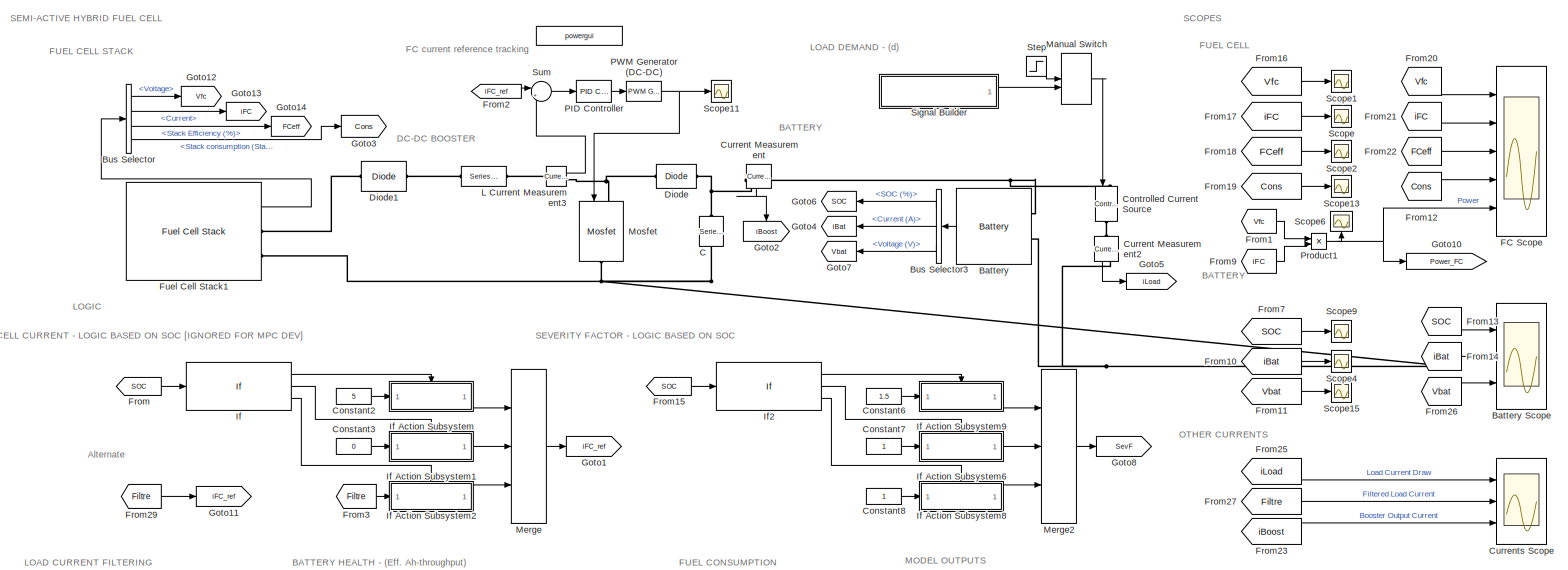
[diagram: root canvas - part 1/3, full width, top band]
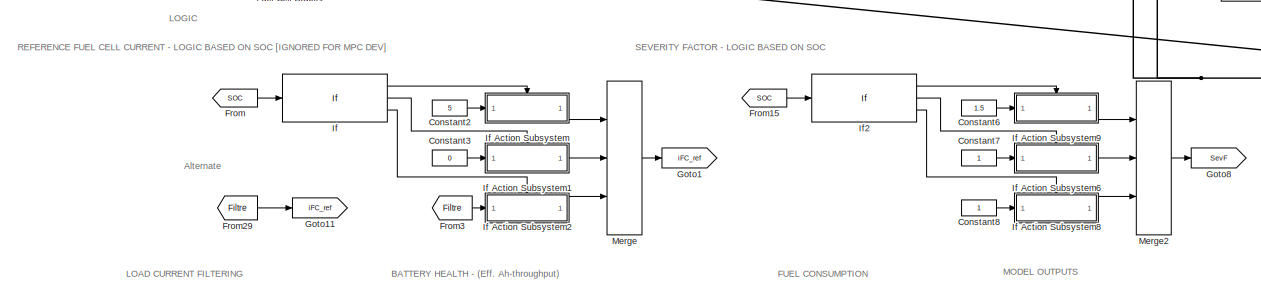
[diagram: root canvas - part 2/3, full width, middle band]
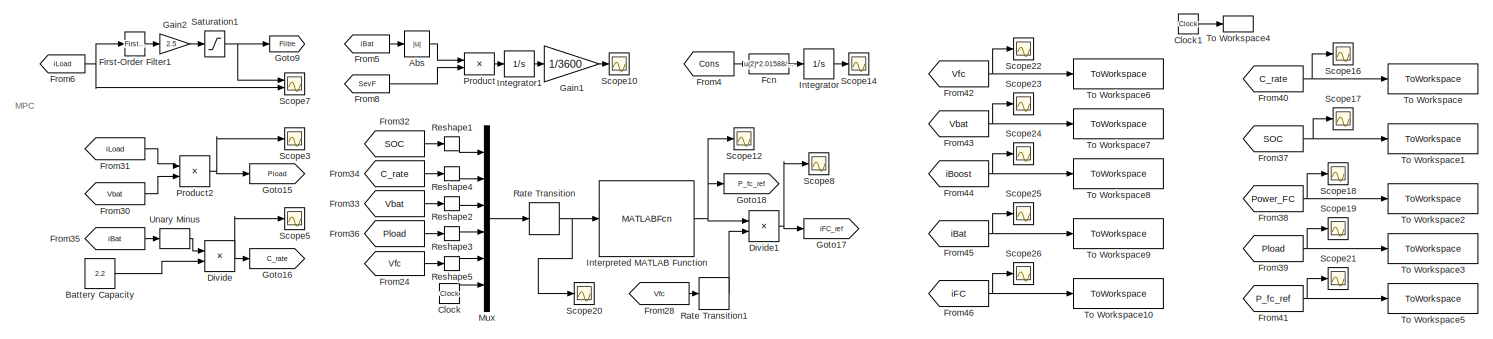
[diagram: root canvas - part 3/3, full width, bottom band]
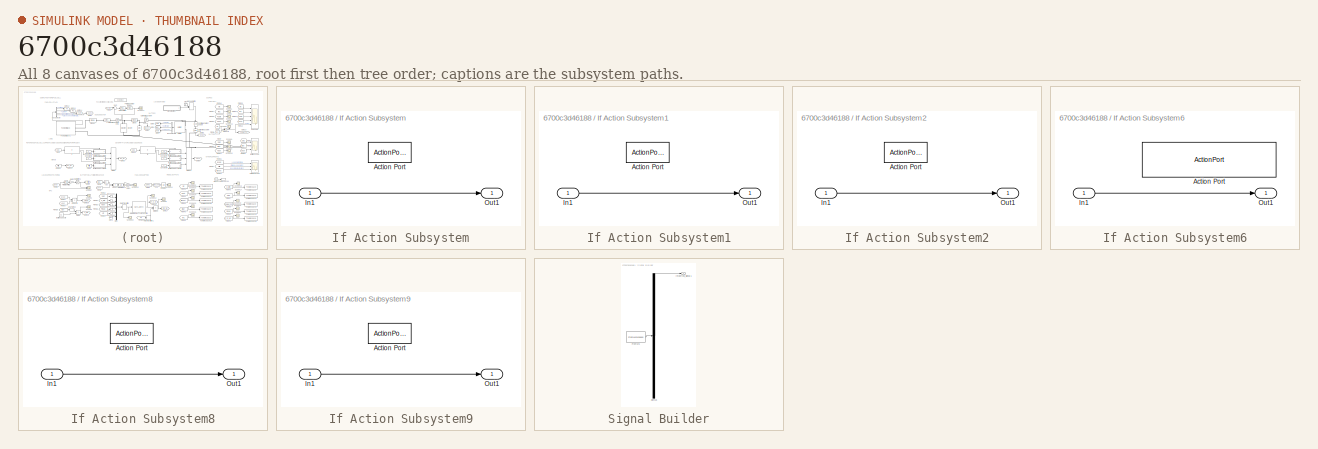
[diagram: thumbnail index - all 8 canvases of the model, root first then tree order]
MODEL slx_6700c3d46188
KIND model
CONFIG AbsTol = auto
CONFIG EnableMultiTasking = off
CONFIG MaxStep = auto
CONFIG MinStep = auto
CONFIG RelTol = 1e-3
CONFIG SampleTimeConstraint = Unconstrained
CONFIG SolverName = VariableStepAuto
CONFIG StartTime = 0.0
CONFIG StopTime =  simTime
WORKSPACE source: mxarray member
WORKSPACE SoC_0: Simulink.Parameter (value not decoded)
BLOCK [Reference]    REF=spspowerguiLib/powergui
  Ports = []
  Priority = 1
  SourceBlock = spspowerguiLib/powergui
  SourceProductBaseCode = PS
  SourceType = PSB option menu block
BLOCK [Abs] Abs
  SaturateOnIntegerOverflow = off
BLOCK [Reference] Battery  REF=spsBatteryLib/Battery
  Ports = [0, 1, 0, 0, 0, 2]
  SourceBlock = spsBatteryLib/Battery
  SourceProductBaseCode = PS
  SourceType = Battery
BLOCK [Constant] Battery Capacity
  Value = 2.2
BLOCK [Scope] Battery Scope 
  Floating = off
  NumInputPorts = 3
  Ports = [3]
  ScopeSpecificationString = Simulink.scopes.TimeScopeBlockCfg('CurrentConfiguration', extmgr.ConfigurationSet(extmgr.Configuration('Core','General UI',true,'FigureColor',[1 1 1]),extmgr.Configuration('Core','Source UI',true),extmgr.Configuration('Sources','WiredSimulink',true,'DataLoggingVariableName','ScopeData1'),extmgr.Configuration('Visuals','Time Domain',true,'SerializedDisplays',{struct('MinYLimReal','49.89111','MaxYLi...<+3268ch>
BLOCK [BusSelector] Bus Selector
  OutputSignals = Voltage,Current,Stack Efficiency (%),Stack consumption (Standard lpm) [Air(Yellow); Fuel(Magenta)]
  Ports = [1, 4]
BLOCK [BusSelector] Bus Selector3
  OutputSignals = SOC (%),Current (A),Voltage (V)
  Ports = [1, 3]
BLOCK [Reference] C  REF=spsSeriesRLCBranchLib/Series RLC Branch
  NameLocation = left
  Ports = [0, 0, 0, 0, 0, 1, 1]
  SourceBlock = spsSeriesRLCBranchLib/Series RLC Branch
  SourceProductBaseCode = PS
  SourceType = Series RLC Branch
BLOCK [Clock] Clock
BLOCK [Clock] Clock1
BLOCK [Constant] Constant2
  Commented = on
  Value = 5
BLOCK [Constant] Constant3
  Commented = on
  Value = 0
BLOCK [Constant] Constant6
  Value = 1.5
BLOCK [Constant] Constant7
BLOCK [Constant] Constant8
BLOCK [Reference] Controlled Current Source  REF=spsControlledCurrentSourceLib/Controlled Current Source
  NameLocation = left
  Ports = [1, 0, 0, 0, 0, 1, 1]
  SourceBlock = spsControlledCurrentSourceLib/Controlled Current Source
  SourceProductBaseCode = PS
  SourceType = Controlled Current Source
BLOCK [Reference] Current Measurement  REF=spsCurrentMeasurementLib/Current Measurement
  Ports = [0, 1, 0, 0, 0, 1, 1]
  SourceBlock = spsCurrentMeasurementLib/Current Measurement
  SourceProductBaseCode = PS
  SourceType = Current Measurement
  UserDataPersistent = on
BLOCK [Reference] Current Measurement2  REF=spsCurrentMeasurementLib/Current Measurement
  NameLocation = left
  Ports = [0, 1, 0, 0, 0, 1, 1]
  SourceBlock = spsCurrentMeasurementLib/Current Measurement
  SourceProductBaseCode = PS
  SourceType = Current Measurement
  UserDataPersistent = on
BLOCK [Reference] Current Measurement3  REF=spsCurrentMeasurementLib/Current Measurement
  Ports = [0, 1, 0, 0, 0, 1, 1]
  SourceBlock = spsCurrentMeasurementLib/Current Measurement
  SourceProductBaseCode = PS
  SourceType = Current Measurement
  UserDataPersistent = on
BLOCK [Scope] Currents Scope 
  Floating = off
  NumInputPorts = 3
  Ports = [3]
  ScopeSpecificationString = Simulink.scopes.TimeScopeBlockCfg('CurrentConfiguration', extmgr.ConfigurationSet(extmgr.Configuration('Core','General UI',true,'FigureColor',[1 1 1]),extmgr.Configuration('Core','Source UI',true),extmgr.Configuration('Sources','WiredSimulink',true,'DataLoggingVariableName','ScopeData2'),extmgr.Configuration('Visuals','Time Domain',true,'SerializedDisplays',{struct('MinYLimReal','0.5','MaxYLimReal...<+3308ch>
BLOCK [Reference] Diode  REF=spsDiodeLib/Diode
  Ports = [0, 0, 0, 0, 0, 1, 1]
  SourceBlock = spsDiodeLib/Diode
  SourceProductBaseCode = PS
  SourceType = Diode
BLOCK [Reference] Diode1  REF=spsDiodeLib/Diode
  Ports = [0, 0, 0, 0, 0, 1, 1]
  SourceBlock = spsDiodeLib/Diode
  SourceProductBaseCode = PS
  SourceType = Diode
BLOCK [Product] Divide
  Inputs = */
  Ports = [2, 1]
BLOCK [Product] Divide1
  Inputs = */
  Ports = [2, 1]
BLOCK [Scope] FC Scope
  Floating = off
  NumInputPorts = 5
  Ports = [5]
  ScopeSpecificationString = Simulink.scopes.TimeScopeBlockCfg('CurrentConfiguration', extmgr.ConfigurationSet(extmgr.Configuration('Core','General UI',true,'FigureColor',[1 1 1]),extmgr.Configuration('Core','Source UI',true),extmgr.Configuration('Sources','WiredSimulink',true,'DataLoggingVariableName','ScopeData1'),extmgr.Configuration('Visuals','Time Domain',true,'SerializedDisplays',{struct('MinYLimReal','11.24147','MaxYLi...<+4244ch>
BLOCK [Fcn] Fcn
  Expr = u(2)*2.01588/(23.65*60)
BLOCK [Reference] First-Order Filter1  REF=spsFirstOrderFilterLib/First-Order
Filter
  Ports = [1, 1]
  SourceBlock = spsFirstOrderFilterLib/First-Order\nFilter
  SourceProductBaseCode = PS
  SourceType = First-Order Filter
BLOCK [From] From
  Commented = on
  GotoTag = SOC
BLOCK [From] From1
  GotoTag = Vfc
  TagVisibility = global
BLOCK [From] From10
  GotoTag = iBat
BLOCK [From] From11
  GotoTag = Vbat
  TagVisibility = global
BLOCK [From] From12
  GotoTag = Cons
BLOCK [From] From13
  GotoTag = SOC
  TagVisibility = global
BLOCK [From] From14
  GotoTag = iBat
BLOCK [From] From15
  GotoTag = SOC
  TagVisibility = global
BLOCK [From] From16
  GotoTag = Vfc
  TagVisibility = global
BLOCK [From] From17
  GotoTag = iFC
BLOCK [From] From18
  GotoTag = FCeff
BLOCK [From] From19
  GotoTag = Cons
BLOCK [From] From2
  GotoTag = iFC_ref
BLOCK [From] From20
  GotoTag = Vfc
  TagVisibility = global
BLOCK [From] From21
  GotoTag = iFC
BLOCK [From] From22
  GotoTag = FCeff
BLOCK [From] From23
  GotoTag = iBoost
BLOCK [From] From24
  GotoTag = Vfc
  TagVisibility = global
BLOCK [From] From25
  GotoTag = iLoad
BLOCK [From] From26
  GotoTag = Vbat
  TagVisibility = global
BLOCK [From] From27
  GotoTag = Filtre
BLOCK [From] From28
  GotoTag = Vfc
  NameLocation = top
  TagVisibility = global
BLOCK [From] From29
  Commented = on
  GotoTag = Filtre
BLOCK [From] From3
  Commented = on
  GotoTag = Filtre
BLOCK [From] From30
  GotoTag = Vbat
  TagVisibility = global
BLOCK [From] From31
  GotoTag = iLoad
BLOCK [From] From32
  GotoTag = SOC
  TagVisibility = global
BLOCK [From] From33
  GotoTag = Vbat
  TagVisibility = global
BLOCK [From] From34
  GotoTag = C_rate
  TagVisibility = global
BLOCK [From] From35
  GotoTag = iBat
BLOCK [From] From36
  GotoTag = Pload
  TagVisibility = global
BLOCK [From] From37
  GotoTag = SOC
  TagVisibility = global
BLOCK [From] From38
  GotoTag = Power_FC
BLOCK [From] From39
  GotoTag = Pload
  TagVisibility = global
BLOCK [From] From4
  GotoTag = Cons
BLOCK [From] From40
  GotoTag = C_rate
  TagVisibility = global
BLOCK [From] From41
  GotoTag = P_fc_ref
BLOCK [From] From42
  GotoTag = Vfc
  TagVisibility = global
BLOCK [From] From43
  GotoTag = Vbat
  TagVisibility = global
BLOCK [From] From44
  GotoTag = iBoost
BLOCK [From] From45
  GotoTag = iBat
BLOCK [From] From46
  GotoTag = iFC
BLOCK [From] From5
  GotoTag = iBat
BLOCK [From] From6
  GotoTag = iLoad
BLOCK [From] From7
  GotoTag = SOC
  TagVisibility = global
BLOCK [From] From8
  GotoTag = SevF
BLOCK [From] From9
  GotoTag = iFC
BLOCK [Reference] Fuel Cell Stack1  REF=spsFuelCellStackLib/Fuel Cell Stack
  Ports = [0, 1, 0, 0, 0, 0, 2]
  SourceBlock = spsFuelCellStackLib/Fuel Cell Stack
  SourceProductBaseCode = PS
  SourceType = Fuel Cell Stack
BLOCK [Gain] Gain1
  Gain = 1/3600
BLOCK [Gain] Gain2
  Gain = 2.5
BLOCK [Goto] Goto1
  Commented = on
  GotoTag = iFC_ref
BLOCK [Goto] Goto10
  GotoTag = Power_FC
BLOCK [Goto] Goto11
  Commented = on
  GotoTag = iFC_ref
BLOCK [Goto] Goto12
  GotoTag = Vfc
  TagVisibility = global
BLOCK [Goto] Goto13
  GotoTag = iFC
BLOCK [Goto] Goto14
  GotoTag = FCeff
BLOCK [Goto] Goto15
  GotoTag = Pload
  TagVisibility = global
BLOCK [Goto] Goto16
  GotoTag = C_rate
  TagVisibility = global
BLOCK [Goto] Goto17
  GotoTag = iFC_ref
BLOCK [Goto] Goto18
  GotoTag = P_fc_ref
BLOCK [Goto] Goto2
  GotoTag = iBoost
  NameLocation = left
BLOCK [Goto] Goto3
  GotoTag = Cons
BLOCK [Goto] Goto4
  GotoTag = iBat
BLOCK [Goto] Goto5
  GotoTag = iLoad
BLOCK [Goto] Goto6
  GotoTag = SOC
  TagVisibility = global
BLOCK [Goto] Goto7
  GotoTag = Vbat
  TagVisibility = global
BLOCK [Goto] Goto8
  GotoTag = SevF
BLOCK [Goto] Goto9
  GotoTag = Filtre
BLOCK [If] If
  Commented = on
  ElseIfExpressions = u1 > 90
  IfExpression = u1 < 40
  Ports = [1, 3]
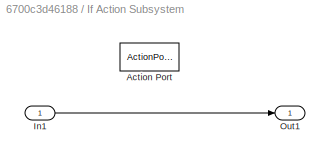
BLOCK [SubSystem] If Action Subsystem
  Commented = on
  Ports = [1, 1, 0, 0, 0, 0, 0, 1]
  RequestExecContextInheritance = off
  TreatAsAtomicUnit = on
BLOCK [ActionPort] If Action Subsystem/Action Port
  ActionPortLabel = if(u1 < 40)
BLOCK [Inport] If Action Subsystem/In1
BLOCK [Outport] If Action Subsystem/Out1
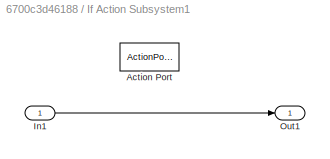
BLOCK [SubSystem] If Action Subsystem1
  Commented = on
  Ports = [1, 1, 0, 0, 0, 0, 0, 1]
  RequestExecContextInheritance = off
  TreatAsAtomicUnit = on
BLOCK [ActionPort] If Action Subsystem1/Action Port
  ActionPortLabel = elseif(u1 > 90)
BLOCK [Inport] If Action Subsystem1/In1
BLOCK [Outport] If Action Subsystem1/Out1
BLOCK [SubSystem] If Action Subsystem2
  Commented = on
  Ports = [1, 1, 0, 0, 0, 0, 0, 1]
  RequestExecContextInheritance = off
  TreatAsAtomicUnit = on
BLOCK [ActionPort] If Action Subsystem2/Action Port
  ActionPortLabel = else
BLOCK [Inport] If Action Subsystem2/In1
BLOCK [Outport] If Action Subsystem2/Out1
BLOCK [SubSystem] If Action Subsystem6
  Ports = [1, 1, 0, 0, 0, 0, 0, 1]
  RequestExecContextInheritance = off
  TreatAsAtomicUnit = on
BLOCK [ActionPort] If Action Subsystem6/Action Port
  ActionPortLabel = elseif(u1 > 80)
BLOCK [Inport] If Action Subsystem6/In1
BLOCK [Outport] If Action Subsystem6/Out1
BLOCK [SubSystem] If Action Subsystem8
  Ports = [1, 1, 0, 0, 0, 0, 0, 1]
  RequestExecContextInheritance = off
  TreatAsAtomicUnit = on
BLOCK [ActionPort] If Action Subsystem8/Action Port
  ActionPortLabel = else
BLOCK [Inport] If Action Subsystem8/In1
BLOCK [Outport] If Action Subsystem8/Out1
BLOCK [SubSystem] If Action Subsystem9
  Ports = [1, 1, 0, 0, 0, 0, 0, 1]
  RequestExecContextInheritance = off
  TreatAsAtomicUnit = on
BLOCK [ActionPort] If Action Subsystem9/Action Port
  ActionPortLabel = if(u1 < 40)
BLOCK [Inport] If Action Subsystem9/In1
BLOCK [Outport] If Action Subsystem9/Out1
BLOCK [If] If2
  ElseIfExpressions = u1 > 80
  IfExpression = u1 < 40
  Ports = [1, 3]
BLOCK [Integrator] Integrator
  Ports = [1, 1]
BLOCK [Integrator] Integrator1
  Ports = [1, 1]
BLOCK [MATLABFcn] Interpreted MATLAB Function
  MATLABFcn = slow_linearMPC(u(1),u(2),u(3),u(4),u(5),u(6))
  Ports = [1, 1]
BLOCK [Reference] L  REF=spsSeriesRLCBranchLib/Series RLC Branch
  Ports = [0, 0, 0, 0, 0, 1, 1]
  SourceBlock = spsSeriesRLCBranchLib/Series RLC Branch
  SourceProductBaseCode = PS
  SourceType = Series RLC Branch
BLOCK [ManualSwitch] Manual Switch
BLOCK [Merge] Merge
  Commented = on
  Inputs = 3
  Ports = [3, 1]
BLOCK [Merge] Merge2
  Inputs = 3
  Ports = [3, 1]
BLOCK [Reference] Mosfet  REF=spsMosfetLib/Mosfet
  NameLocation = left
  Ports = [1, 0, 0, 0, 0, 1, 1]
  SourceBlock = spsMosfetLib/Mosfet
  SourceProductBaseCode = PS
  SourceType = Mosfet
BLOCK [Mux] Mux
  DisplayOption = bar
  Inputs = 6
  Ports = [6, 1]
BLOCK [Reference] PID Controller  REF=pid_lib/PID Controller
  Ports = [1, 1]
  SourceBlock = pid_lib/PID Controller
  SourceProductBaseCode = SL
  SourceType = PID 1dof
BLOCK [Reference] PWM Generator (DC-DC)  REF=spsPWMGeneratorDCDCLib/PWM Generator
(DC-DC)
  Ports = [1, 1]
  SourceBlock = spsPWMGeneratorDCDCLib/PWM Generator\n(DC-DC)
  SourceProductBaseCode = PS
  SourceType = PWM Generator (DC-DC)
BLOCK [Product] Product
  NameLocation = left
  Ports = [2, 1]
BLOCK [Product] Product1
  Ports = [2, 1]
BLOCK [Product] Product2
  Ports = [2, 1]
BLOCK [RateTransition] Rate Transition
  OutPortSampleTime = Ts
BLOCK [RateTransition] Rate Transition1
  OutPortSampleTime = Ts
BLOCK [Reshape] Reshape1
  OutputDimensionality = Customize
  OutputDimensions = 1
  Ports = [1, 1]
BLOCK [Reshape] Reshape2
  OutputDimensionality = Customize
  OutputDimensions = 1
  Ports = [1, 1]
BLOCK [Reshape] Reshape3
  OutputDimensionality = Customize
  OutputDimensions = 1
  Ports = [1, 1]
BLOCK [Reshape] Reshape4
  OutputDimensionality = Customize
  OutputDimensions = 1
  Ports = [1, 1]
BLOCK [Reshape] Reshape5
  OutputDimensionality = Customize
  OutputDimensions = 1
  Ports = [1, 1]
BLOCK [Saturate] Saturation1
  LowerLimit = 0
  UpperLimit = 5
BLOCK [Scope] Scope
  Floating = off
  NumInputPorts = 1
  Ports = [1]
  ScopeSpecificationString = Simulink.scopes.TimeScopeBlockCfg('CurrentConfiguration', extmgr.ConfigurationSet(extmgr.Configuration('Core','General UI',true),extmgr.Configuration('Core','Source UI',true),extmgr.Configuration('Sources','WiredSimulink',true,'DataLoggingVariableName','ScopeData3','DataLoggingSaveFormat','Array','DataLoggingDecimation','1','DataLoggingDecimateData',true),extmgr.Configuration('Visuals','Time Domai...<+1488ch>
BLOCK [Scope] Scope1
  Floating = off
  NumInputPorts = 1
  Ports = [1]
  ScopeSpecificationString = Simulink.scopes.TimeScopeBlockCfg('CurrentConfiguration', extmgr.ConfigurationSet(extmgr.Configuration('Core','General UI',true),extmgr.Configuration('Core','Source UI',true),extmgr.Configuration('Sources','WiredSimulink',true,'DataLoggingVariableName','ScopeData4','DataLoggingSaveFormat','Array','DataLoggingDecimation','1','DataLoggingDecimateData',true),extmgr.Configuration('Visuals','Time Domai...<+1495ch>
BLOCK [Scope] Scope10
  Floating = off
  NumInputPorts = 1
  Ports = [1]
  ScopeSpecificationString = Simulink.scopes.TimeScopeBlockCfg('CurrentConfiguration', extmgr.ConfigurationSet(extmgr.Configuration('Core','General UI',true,'FigureColor',[1 1 1]),extmgr.Configuration('Core','Source UI',true),extmgr.Configuration('Sources','WiredSimulink',true,'DataLoggingVariableName','ScopeData2'),extmgr.Configuration('Visuals','Time Domain',true,'SerializedDisplays',{struct('MinYLimReal','-0.00151','MaxYLi...<+1665ch>
BLOCK [Scope] Scope11
  Floating = off
  NumInputPorts = 1
  Ports = [1]
  ScopeSpecificationString = Simulink.scopes.TimeScopeBlockCfg('CurrentConfiguration', extmgr.ConfigurationSet(extmgr.Configuration('Core','General UI',true),extmgr.Configuration('Core','Source UI',true),extmgr.Configuration('Sources','WiredSimulink',true,'DataLoggingVariableName','ScopeData2','DataLoggingSaveFormat','Array','DataLoggingDecimation','1','DataLoggingDecimateData',true),extmgr.Configuration('Visuals','Time Domai...<+1512ch>
BLOCK [Scope] Scope12
  Floating = off
  NumInputPorts = 1
  Ports = [1]
  ScopeSpecificationString = Simulink.scopes.TimeScopeBlockCfg('CurrentConfiguration', extmgr.ConfigurationSet(extmgr.Configuration('Core','General UI',true,'FigureColor',[1 1 1]),extmgr.Configuration('Core','Source UI',true),extmgr.Configuration('Sources','WiredSimulink',true,'DataLoggingVariableName','ScopeData3'),extmgr.Configuration('Visuals','Time Domain',true,'SerializedDisplays',{struct('MinYLimReal','-2.5','MaxYLimRea...<+1645ch>
BLOCK [Scope] Scope13
  Floating = off
  NumInputPorts = 1
  Ports = [1]
  ScopeSpecificationString = Simulink.scopes.TimeScopeBlockCfg('CurrentConfiguration', extmgr.ConfigurationSet(extmgr.Configuration('Core','General UI',true),extmgr.Configuration('Core','Source UI',true),extmgr.Configuration('Sources','WiredSimulink',true,'DataLoggingVariableName','ScopeData5','DataLoggingSaveFormat','Array','DataLoggingDecimation','1','DataLoggingDecimateData',true),extmgr.Configuration('Visuals','Time Domai...<+1583ch>
BLOCK [Scope] Scope14
  Floating = off
  NumInputPorts = 1
  Ports = [1]
  ScopeSpecificationString = Simulink.scopes.TimeScopeBlockCfg('CurrentConfiguration', extmgr.ConfigurationSet(extmgr.Configuration('Core','General UI',true,'FigureColor',[1 1 1]),extmgr.Configuration('Core','Source UI',true),extmgr.Configuration('Sources','WiredSimulink',true,'DataLoggingVariableName','ScopeData2'),extmgr.Configuration('Visuals','Time Domain',true,'SerializedDisplays',{struct('MinYLimReal','-0.00409','MaxYLi...<+1677ch>
BLOCK [Scope] Scope15
  Floating = off
  NumInputPorts = 1
  Ports = [1]
  ScopeSpecificationString = Simulink.scopes.TimeScopeBlockCfg('CurrentConfiguration', extmgr.ConfigurationSet(extmgr.Configuration('Core','General UI',true),extmgr.Configuration('Core','Source UI',true),extmgr.Configuration('Sources','WiredSimulink',true,'DataLoggingVariableName','ScopeData6','DataLoggingSaveFormat','Array','DataLoggingDecimation','1','DataLoggingDecimateData',true),extmgr.Configuration('Visuals','Time Domai...<+1467ch>
BLOCK [Scope] Scope16
  Floating = off
  NumInputPorts = 1
  Ports = [1]
  ScopeSpecificationString = Simulink.scopes.TimeScopeBlockCfg('CurrentConfiguration', extmgr.ConfigurationSet(extmgr.Configuration('Core','General UI',true),extmgr.Configuration('Core','Source UI',true),extmgr.Configuration('Sources','WiredSimulink',true,'DataLoggingVariableName','ScopeData1','DataLoggingSaveFormat','Array','DataLoggingDecimation','1','DataLoggingDecimateData',true),extmgr.Configuration('Visuals','Time Domai...<+1504ch>
BLOCK [Scope] Scope17
  Floating = off
  NumInputPorts = 1
  Ports = [1]
  ScopeSpecificationString = Simulink.scopes.TimeScopeBlockCfg('CurrentConfiguration', extmgr.ConfigurationSet(extmgr.Configuration('Core','General UI',true),extmgr.Configuration('Core','Source UI',true),extmgr.Configuration('Sources','WiredSimulink',true,'DataLoggingVariableName','ScopeData2','DataLoggingSaveFormat','Array','DataLoggingDecimation','1','DataLoggingDecimateData',true),extmgr.Configuration('Visuals','Time Domai...<+1504ch>  <repeated x3 — deduplicated; at blocks: Scope17, Scope23, Scope5>
BLOCK [Scope] Scope18
  Floating = off
  NumInputPorts = 1
  Ports = [1]
  ScopeSpecificationString = Simulink.scopes.TimeScopeBlockCfg('CurrentConfiguration', extmgr.ConfigurationSet(extmgr.Configuration('Core','General UI',true),extmgr.Configuration('Core','Source UI',true),extmgr.Configuration('Sources','WiredSimulink',true,'DataLoggingVariableName','ScopeData3','DataLoggingSaveFormat','Array','DataLoggingDecimation','1','DataLoggingDecimateData',true),extmgr.Configuration('Visuals','Time Domai...<+1507ch>
BLOCK [Scope] Scope19
  Floating = off
  NumInputPorts = 1
  Ports = [1]
  ScopeSpecificationString = Simulink.scopes.TimeScopeBlockCfg('CurrentConfiguration', extmgr.ConfigurationSet(extmgr.Configuration('Core','General UI',true),extmgr.Configuration('Core','Source UI',true),extmgr.Configuration('Sources','WiredSimulink',true,'DataLoggingVariableName','ScopeData4','DataLoggingSaveFormat','Array','DataLoggingDecimation','1','DataLoggingDecimateData',true),extmgr.Configuration('Visuals','Time Domai...<+1504ch>
BLOCK [Scope] Scope2
  Floating = off
  NumInputPorts = 1
  Ports = [1]
  ScopeSpecificationString = Simulink.scopes.TimeScopeBlockCfg('CurrentConfiguration', extmgr.ConfigurationSet(extmgr.Configuration('Core','General UI',true),extmgr.Configuration('Core','Source UI',true),extmgr.Configuration('Sources','WiredSimulink',true,'DataLoggingVariableName','ScopeData7','DataLoggingSaveFormat','Array','DataLoggingDecimation','1','DataLoggingDecimateData',true),extmgr.Configuration('Visuals','Time Domai...<+1458ch>
BLOCK [Scope] Scope20
  Floating = off
  NumInputPorts = 1
  Ports = [1]
  ScopeSpecificationString = Simulink.scopes.TimeScopeBlockCfg('CurrentConfiguration', extmgr.ConfigurationSet(extmgr.Configuration('Core','General UI',true,'FigureColor',[1 1 1]),extmgr.Configuration('Core','Source UI',true),extmgr.Configuration('Sources','WiredSimulink',true,'DataLoggingVariableName','ScopeData5'),extmgr.Configuration('Visuals','Time Domain',true,'SerializedDisplays',{struct('MinYLimReal','-127.76923','MaxY...<+1800ch>
BLOCK [Scope] Scope21
  Floating = off
  NumInputPorts = 1
  Ports = [1]
  ScopeSpecificationString = Simulink.scopes.TimeScopeBlockCfg('CurrentConfiguration', extmgr.ConfigurationSet(extmgr.Configuration('Core','General UI',true),extmgr.Configuration('Core','Source UI',true),extmgr.Configuration('Sources','WiredSimulink',true,'DataLoggingVariableName','ScopeData6','DataLoggingSaveFormat','Array','DataLoggingDecimation','1','DataLoggingDecimateData',true),extmgr.Configuration('Visuals','Time Domai...<+1504ch>
BLOCK [Scope] Scope22
  Floating = off
  NumInputPorts = 1
  Ports = [1]
  ScopeSpecificationString = Simulink.scopes.TimeScopeBlockCfg('CurrentConfiguration', extmgr.ConfigurationSet(extmgr.Configuration('Core','General UI',true),extmgr.Configuration('Core','Source UI',true),extmgr.Configuration('Sources','WiredSimulink',true,'DataLoggingVariableName','ScopeData1','DataLoggingSaveFormat','Array','DataLoggingDecimation','1','DataLoggingDecimateData',true),extmgr.Configuration('Visuals','Time Domai...<+1509ch>
BLOCK [Scope] Scope23
  Floating = off
  NumInputPorts = 1
  Ports = [1]
BLOCK [Scope] Scope24
  Floating = off
  NumInputPorts = 1
  Ports = [1]
  ScopeSpecificationString = Simulink.scopes.TimeScopeBlockCfg('CurrentConfiguration', extmgr.ConfigurationSet(extmgr.Configuration('Core','General UI',true),extmgr.Configuration('Core','Source UI',true),extmgr.Configuration('Sources','WiredSimulink',true,'DataLoggingVariableName','ScopeData3','DataLoggingSaveFormat','Array','DataLoggingDecimation','1','DataLoggingDecimateData',true),extmgr.Configuration('Visuals','Time Domai...<+1504ch>
BLOCK [Scope] Scope25
  Floating = off
  NumInputPorts = 1
  Ports = [1]
  ScopeSpecificationString = Simulink.scopes.TimeScopeBlockCfg('CurrentConfiguration', extmgr.ConfigurationSet(extmgr.Configuration('Core','General UI',true),extmgr.Configuration('Core','Source UI',true),extmgr.Configuration('Sources','WiredSimulink',true,'DataLoggingVariableName','ScopeData4','DataLoggingSaveFormat','Array','DataLoggingDecimation','1','DataLoggingDecimateData',true),extmgr.Configuration('Visuals','Time Domai...<+1504ch>
BLOCK [Scope] Scope26
  Floating = off
  NumInputPorts = 1
  Ports = [1]
  ScopeSpecificationString = Simulink.scopes.TimeScopeBlockCfg('CurrentConfiguration', extmgr.ConfigurationSet(extmgr.Configuration('Core','General UI',true),extmgr.Configuration('Core','Source UI',true),extmgr.Configuration('Sources','WiredSimulink',true,'DataLoggingVariableName','ScopeData5','DataLoggingSaveFormat','Array','DataLoggingDecimation','1','DataLoggingDecimateData',true),extmgr.Configuration('Visuals','Time Domai...<+1504ch>
BLOCK [Scope] Scope3
  Floating = off
  NumInputPorts = 1
  Ports = [1]
  ScopeSpecificationString = Simulink.scopes.TimeScopeBlockCfg('CurrentConfiguration', extmgr.ConfigurationSet(extmgr.Configuration('Core','General UI',true),extmgr.Configuration('Core','Source UI',true),extmgr.Configuration('Sources','WiredSimulink',true,'DataLoggingVariableName','ScopeData1','DataLoggingSaveFormat','Array','DataLoggingDecimation','1','DataLoggingDecimateData',true),extmgr.Configuration('Visuals','Time Domai...<+1492ch>
BLOCK [Scope] Scope4
  Floating = off
  NumInputPorts = 1
  Ports = [1]
  ScopeSpecificationString = Simulink.scopes.TimeScopeBlockCfg('CurrentConfiguration', extmgr.ConfigurationSet(extmgr.Configuration('Core','General UI',true),extmgr.Configuration('Core','Source UI',true),extmgr.Configuration('Sources','WiredSimulink',true,'DataLoggingVariableName','ScopeData8','DataLoggingSaveFormat','Array','DataLoggingDecimation','1','DataLoggingDecimateData',true),extmgr.Configuration('Visuals','Time Domai...<+1516ch>
BLOCK [Scope] Scope5
  Floating = off
  NumInputPorts = 1
  Ports = [1]
BLOCK [Scope] Scope6
  Floating = off
  NameLocation = right
  NumInputPorts = 1
  Ports = [1]
  ScopeSpecificationString = Simulink.scopes.TimeScopeBlockCfg('CurrentConfiguration', extmgr.ConfigurationSet(extmgr.Configuration('Core','General UI',true),extmgr.Configuration('Core','Source UI',true),extmgr.Configuration('Sources','WiredSimulink',true,'DataLoggingVariableName','ScopeData1','DataLoggingSaveFormat','Array','DataLoggingDecimation','1','DataLoggingDecimateData',true),extmgr.Configuration('Visuals','Time Domai...<+1489ch>
BLOCK [Scope] Scope7
  Floating = off
  NumInputPorts = 2
  Ports = [2]
  ScopeSpecificationString = Simulink.scopes.TimeScopeBlockCfg('CurrentConfiguration', extmgr.ConfigurationSet(extmgr.Configuration('Core','General UI',true,'FigureColor',[1 1 1]),extmgr.Configuration('Core','Source UI',true),extmgr.Configuration('Sources','WiredSimulink',true,'DataLoggingVariableName','ScopeData1'),extmgr.Configuration('Visuals','Time Domain',true,'SerializedDisplays',{struct('MinYLimReal','-1.9291','MaxYLim...<+1956ch>
BLOCK [Scope] Scope8
  Floating = off
  NumInputPorts = 1
  Ports = [1]
  ScopeSpecificationString = Simulink.scopes.TimeScopeBlockCfg('CurrentConfiguration', extmgr.ConfigurationSet(extmgr.Configuration('Core','General UI',true,'FigureColor',[1 1 1]),extmgr.Configuration('Core','Source UI',true),extmgr.Configuration('Sources','WiredSimulink',true,'DataLoggingVariableName','ScopeData1'),extmgr.Configuration('Visuals','Time Domain',true,'SerializedDisplays',{struct('MinYLimReal','-0.50025','MaxYLi...<+1647ch>
BLOCK [Scope] Scope9
  Floating = off
  NumInputPorts = 1
  Ports = [1]
  ScopeSpecificationString = Simulink.scopes.TimeScopeBlockCfg('CurrentConfiguration', extmgr.ConfigurationSet(extmgr.Configuration('Core','General UI',true),extmgr.Configuration('Core','Source UI',true),extmgr.Configuration('Sources','WiredSimulink',true,'DataLoggingVariableName','ScopeData9','DataLoggingSaveFormat','Array','DataLoggingDecimation','1','DataLoggingDecimateData',true),extmgr.Configuration('Visuals','Time Domai...<+1490ch>
BLOCK [SubSystem] Signal Builder
  ClipboardFcn = sigbuilder_block('clipboard');
  CloseFcn = sigbuilder_block('close');
  ContinueFcn = sigbuilder_block('continue');
  CopyFcn = sigbuilder_block('copy');
  DeleteFcn = sigbuilder_block('delete');
  LoadFcn = sigbuilder_block('load');
  MaskHideContents = on
  ModelCloseFcn = sigbuilder_block('modelClose');
  NameChangeFcn = sigbuilder_block('namechange');
  OpenFcn = sigbuilder_block('open',[214 20 1706 550 ]);
  PauseFcn = sigbuilder_block('pause');
  Ports = [0, 1]
  PreSaveFcn = sigbuilder_block('preSave');
  RequestExecContextInheritance = off
  StartFcn = sigbuilder_block('start');
  StopFcn = sigbuilder_block('stop');
  Tag = STV Subsys
BLOCK [Demux] Signal Builder/Demux
  DisplayOption = none
  Outputs = 1
  Ports = [1, 1]
  Tag = STV Demux
BLOCK [FromWorkspace] Signal Builder/FromWs
  Tag = STV FromWs
  VariableName = tuvar
BLOCK [Outport] Signal Builder/Imported_Signal 1
  Tag = STV Outport
BLOCK [Step] Step
  After = 0.6
  SampleTime = 0
  Time = 0
BLOCK [Sum] Sum
  Inputs = |+-
  Ports = [2, 1]
BLOCK [ToWorkspace] To Workspace
  FixptAsFi = on
  MaxDataPoints = inf
  Ports = [1]
  SampleTime = -1
  SaveFormat = Timeseries
  VariableName = C_rate_hist
BLOCK [ToWorkspace] To Workspace1
  FixptAsFi = on
  MaxDataPoints = inf
  Ports = [1]
  SampleTime = -1
  SaveFormat = Timeseries
  VariableName = SOC_hist
BLOCK [ToWorkspace] To Workspace10
  FixptAsFi = on
  MaxDataPoints = inf
  Ports = [1]
  SampleTime = -1
  SaveFormat = Timeseries
  VariableName = I_fc_hist
BLOCK [ToWorkspace] To Workspace2
  FixptAsFi = on
  MaxDataPoints = inf
  Ports = [1]
  SampleTime = -1
  SaveFormat = Timeseries
  VariableName = P_fc_hist
BLOCK [ToWorkspace] To Workspace3
  FixptAsFi = on
  MaxDataPoints = inf
  Ports = [1]
  SampleTime = -1
  SaveFormat = Timeseries
  VariableName = P_load_hist
BLOCK [ToWorkspace] To Workspace4
  FixptAsFi = on
  MaxDataPoints = inf
  Ports = [1]
  SampleTime = -1
  SaveFormat = Timeseries
  VariableName = time
BLOCK [ToWorkspace] To Workspace5
  FixptAsFi = on
  MaxDataPoints = inf
  Ports = [1]
  SampleTime = -1
  SaveFormat = Timeseries
  VariableName = P_fc_ref_hist
BLOCK [ToWorkspace] To Workspace6
  FixptAsFi = on
  MaxDataPoints = inf
  Ports = [1]
  SampleTime = -1
  SaveFormat = Timeseries
  VariableName = V_fc_hist
BLOCK [ToWorkspace] To Workspace7
  FixptAsFi = on
  MaxDataPoints = inf
  Ports = [1]
  SampleTime = -1
  SaveFormat = Timeseries
  VariableName = V_bat_hist
BLOCK [ToWorkspace] To Workspace8
  FixptAsFi = on
  MaxDataPoints = inf
  Ports = [1]
  SampleTime = -1
  SaveFormat = Timeseries
  VariableName = I_boost_hist
BLOCK [ToWorkspace] To Workspace9
  FixptAsFi = on
  MaxDataPoints = inf
  Ports = [1]
  SampleTime = -1
  SaveFormat = Timeseries
  VariableName = I_bat_hist
BLOCK [UnaryMinus] Unary Minus
ANNOTATION (root): Alternate
ANNOTATION (root): BATTERY
ANNOTATION (root): BATTERY HEALTH - (Eff. Ah-throughput)
ANNOTATION (root): DC-DC BOOSTER
ANNOTATION (root): FC current reference tracking
ANNOTATION (root): FUEL CELL
ANNOTATION (root): FUEL CELL STACK
ANNOTATION (root): FUEL CONSUMPTION
ANNOTATION (root): LOAD CURRENT FILTERING
ANNOTATION (root): LOAD DEMAND - (d)
ANNOTATION (root): LOGIC
ANNOTATION (root): MODEL OUTPUTS
ANNOTATION (root): MPC
ANNOTATION (root): OTHER CURRENTS
ANNOTATION (root): REFERENCE FUEL CELL CURRENT - LOGIC BASED ON SOC [IGNORED FOR MPC DEV]
ANNOTATION (root): SCOPES
ANNOTATION (root): SEMI-ACTIVE HYBRID FUEL CELL
ANNOTATION (root): SEVERITY FACTOR - LOGIC BASED ON SOC
LINE Abs:1 -> Product:1
LINE Battery Capacity:1 -> Divide:2
LINE Battery:1 -> Bus Selector3:1
LINE Bus Selector3:1 -> Goto6:1
LINE Bus Selector3:2 -> Goto4:1
LINE Bus Selector3:3 -> Goto7:1
LINE Bus Selector:1 -> Goto12:1
LINE Bus Selector:2 -> Goto13:1
LINE Bus Selector:3 -> Goto14:1
LINE Bus Selector:4 -> Goto3:1
LINE Clock1:1 -> To Workspace4:1
LINE Clock:1 -> Mux:6
LINE Constant2:1 -> If Action Subsystem:1
LINE Constant3:1 -> If Action Subsystem1:1
LINE Constant6:1 -> If Action Subsystem9:1
LINE Constant7:1 -> If Action Subsystem6:1
LINE Constant8:1 -> If Action Subsystem8:1
LINE Current Measurement2:1 -> Goto5:1
LINE Current Measurement3:1 -> Sum:2
LINE Current Measurement:1 -> Goto2:1
NET Divide1:1 -> Goto17:1, Scope8:1
NET Divide:1 -> Goto16:1, Scope5:1
LINE Fcn:1 -> Integrator:1
LINE First-Order Filter1:1 -> Gain2:1
LINE From10:1 -> Scope4:1
LINE From11:1 -> Scope15:1
LINE From12:1 -> FC Scope:4
LINE From13:1 -> Battery Scope :1
LINE From14:1 -> Battery Scope :2
LINE From15:1 -> If2:1
LINE From16:1 -> Scope1:1
LINE From17:1 -> Scope:1
LINE From18:1 -> Scope2:1
LINE From19:1 -> Scope13:1
LINE From1:1 -> Product1:1
LINE From20:1 -> FC Scope:1
LINE From21:1 -> FC Scope:2
LINE From22:1 -> FC Scope:3
LINE From23:1 -> Currents Scope :3
LINE From24:1 -> Reshape5:1
LINE From25:1 -> Currents Scope :1
LINE From26:1 -> Battery Scope :3
LINE From27:1 -> Currents Scope :2
LINE From28:1 -> Rate Transition1:1
LINE From29:1 -> Goto11:1
LINE From2:1 -> Sum:1
LINE From30:1 -> Product2:2
LINE From31:1 -> Product2:1
LINE From32:1 -> Reshape1:1
LINE From33:1 -> Reshape2:1
LINE From34:1 -> Reshape4:1
LINE From35:1 -> Unary Minus:1
LINE From36:1 -> Reshape3:1
NET From37:1 -> Scope17:1, To Workspace1:1
NET From38:1 -> Scope18:1, To Workspace2:1
NET From39:1 -> Scope19:1, To Workspace3:1
LINE From3:1 -> If Action Subsystem2:1
NET From40:1 -> Scope16:1, To Workspace:1
NET From41:1 -> Scope21:1, To Workspace5:1
NET From42:1 -> Scope22:1, To Workspace6:1
NET From43:1 -> Scope23:1, To Workspace7:1
NET From44:1 -> Scope24:1, To Workspace8:1
NET From45:1 -> Scope25:1, To Workspace9:1
NET From46:1 -> Scope26:1, To Workspace10:1
LINE From4:1 -> Fcn:1
LINE From5:1 -> Abs:1
NET From6:1 -> First-Order Filter1:1, Scope7:2
LINE From7:1 -> Scope9:1
LINE From8:1 -> Product:2
LINE From9:1 -> Product1:2
LINE From:1 -> If:1
LINE Fuel Cell Stack1:1 -> Bus Selector:1
LINE Gain1:1 -> Scope10:1
LINE Gain2:1 -> Saturation1:1
LINE If Action Subsystem/In1:1 -> If Action Subsystem/Out1:1
LINE If Action Subsystem1/In1:1 -> If Action Subsystem1/Out1:1
LINE If Action Subsystem1:1 -> Merge:2
LINE If Action Subsystem2/In1:1 -> If Action Subsystem2/Out1:1
LINE If Action Subsystem2:1 -> Merge:3
LINE If Action Subsystem6/In1:1 -> If Action Subsystem6/Out1:1
LINE If Action Subsystem6:1 -> Merge2:2
LINE If Action Subsystem8/In1:1 -> If Action Subsystem8/Out1:1
LINE If Action Subsystem8:1 -> Merge2:3
LINE If Action Subsystem9/In1:1 -> If Action Subsystem9/Out1:1
LINE If Action Subsystem9:1 -> Merge2:1
LINE If Action Subsystem:1 -> Merge:1
LINE If2:1 -> If Action Subsystem9:ifaction
LINE If2:2 -> If Action Subsystem6:ifaction
LINE If2:3 -> If Action Subsystem8:ifaction
LINE If:1 -> If Action Subsystem:ifaction
LINE If:2 -> If Action Subsystem1:ifaction
LINE If:3 -> If Action Subsystem2:ifaction
LINE Integrator1:1 -> Gain1:1
LINE Integrator:1 -> Scope14:1
NET Interpreted MATLAB Function:1 -> Divide1:1, Goto18:1, Scope12:1
LINE Manual Switch:1 -> Controlled Current Source:1
LINE Merge2:1 -> Goto8:1
LINE Merge:1 -> Goto1:1
LINE Mux:1 -> Rate Transition:1
LINE PID Controller:1 -> PWM Generator (DC-DC):1
NET PWM Generator (DC-DC):1 -> Mosfet:1, Scope11:1
NET Product1:1 -> FC Scope:5, Goto10:1, Scope6:1
NET Product2:1 -> Goto15:1, Scope3:1
LINE Product:1 -> Integrator1:1
LINE Rate Transition1:1 -> Divide1:2
NET Rate Transition:1 -> Interpreted MATLAB Function:1, Scope20:1
LINE Reshape1:1 -> Mux:1
LINE Reshape2:1 -> Mux:3
LINE Reshape3:1 -> Mux:4
LINE Reshape4:1 -> Mux:2
LINE Reshape5:1 -> Mux:5
NET Saturation1:1 -> Goto9:1, Scope7:1
LINE Signal Builder:1 -> Manual Switch:2
LINE Step:1 -> Manual Switch:1
LINE Sum:1 -> PID Controller:1
LINE Unary Minus:1 -> Divide:1
PNET net1: Battery:LConn1 -- Controlled Current Source:LConn1 -- Current Measurement:RConn1
PNET net2: Battery:LConn2 -- C:RConn1 -- Current Measurement2:RConn1 -- Fuel Cell Stack1:RConn2 -- Mosfet:RConn1
PNET net3: C:LConn1 -- Current Measurement:LConn1 -- Diode:RConn1
PLINE Controlled Current Source:RConn1 -- Current Measurement2:LConn1
PLINE Current Measurement3:LConn1 -- L:RConn1
PNET net4: Current Measurement3:RConn1 -- Diode:LConn1 -- Mosfet:LConn1
PLINE Diode1:LConn1 -- Fuel Cell Stack1:RConn1
PLINE Diode1:RConn1 -- L:LConn1
note: NET lines group one-source signal fan-out (src -> all destinations, sorted); 1:1 wires keep LINE; PNET lines group multi-terminal physical nets as a canonical sorted terminal list (undirected conserving connections); 2-terminal nets keep the pairwise PLINE form
